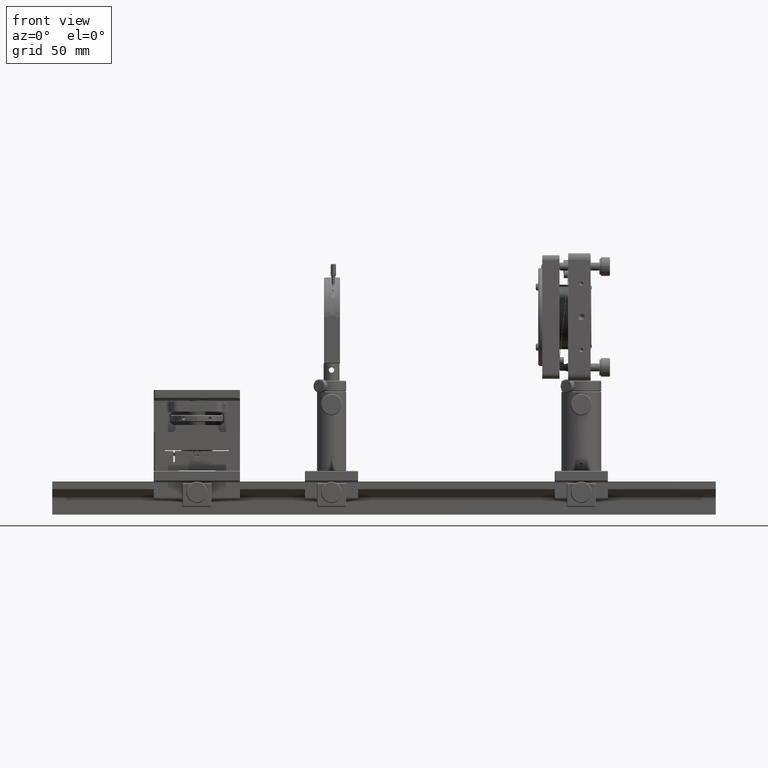
[diagram: clean part render]
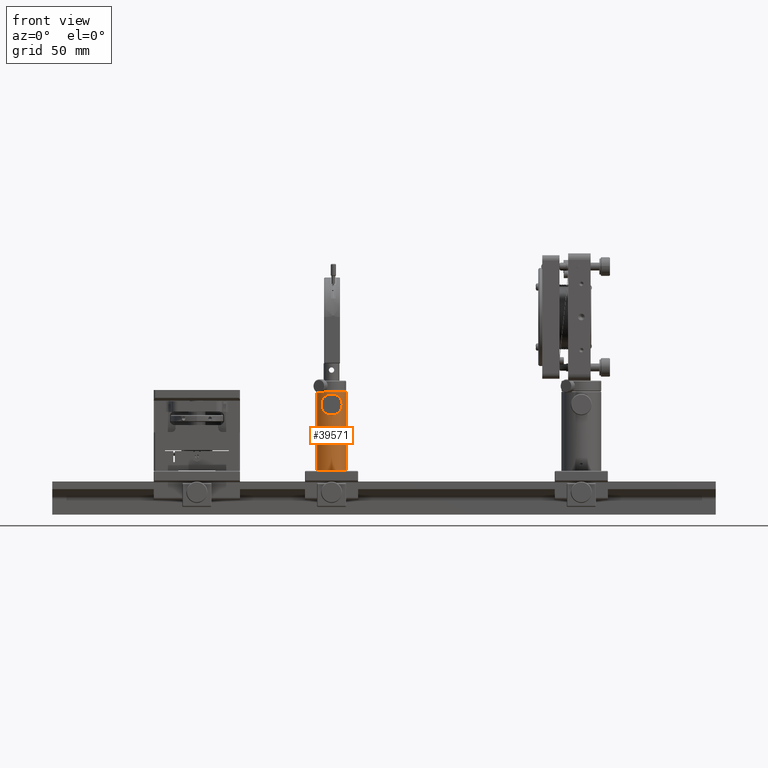
[diagram: same view with one face highlighted and labeled with its STEP entity id]
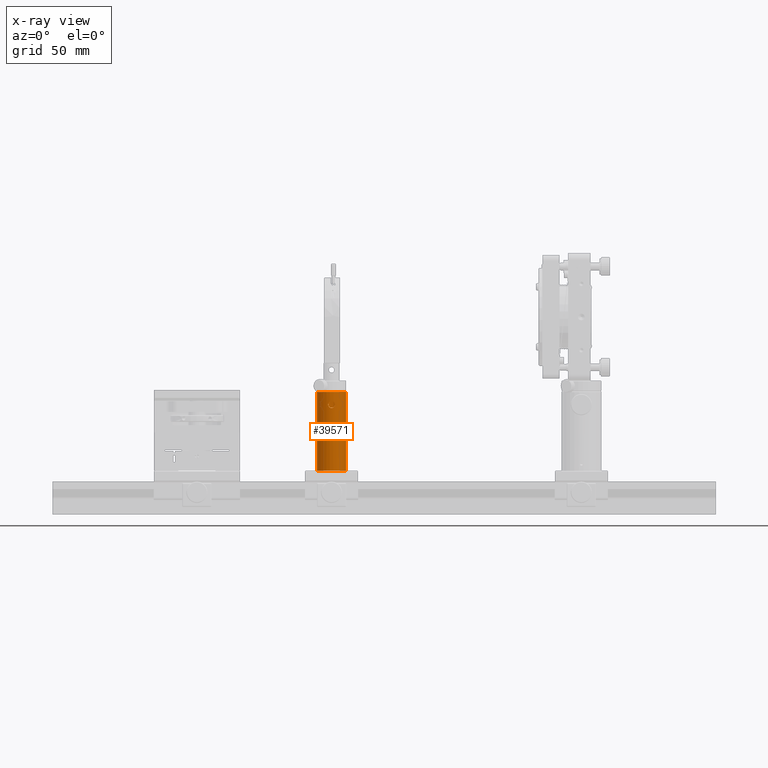
[diagram: x-ray of the same camera — body ghosted, the highlighted face saturated]
A machine part, front view. The second image highlights one B-rep face of the part: STEP entity #39571.
The next image is the same camera in x-ray: the body ghosted, the highlighted face saturated — about 0% of this face is hidden behind the body in this view.
In plain terms, the highlighted cylindrical surface (bore or boss wall) has radius 11 mm, axis along (0, 0, 1).
Its self-contained STEP definition (entity closure, byte-faithful):
#754=B_SPLINE_CURVE_WITH_KNOTS('',3,(#90207,#90208,#90209,#90210,#90211,
#90212,#90213,#90214,#90215,#90216,#90217,#90218,#90219,#90220,#90221,#90222,
#90223,#90224,#90225,#90226,#90227,#90228,#90229,#90230,#90231,#90232,#90233,
#90234,#90235,#90236,#90237,#90238,#90239,#90240),.UNSPECIFIED.,.T.,.F.,
(4,2,2,2,2,2,2,2,2,2,2,2,2,2,2,2,4),(0.,0.0945326703316579,0.189065340663316,
0.283589078138092,0.378112815612869,0.472636553087646,0.567160290562422,
0.66169296089408,0.756225631225739,0.850758301557397,0.945290971889055,
1.03981470936383,1.13433844683861,1.22886218431338,1.32338592178816,1.41791859211982,
1.51245126245148),.UNSPECIFIED.);
#757=B_SPLINE_CURVE_WITH_KNOTS('',3,(#90327,#90328,#90329,#90330,#90331,
#90332,#90333,#90334,#90335,#90336),.UNSPECIFIED.,.F.,.F.,(4,2,2,2,4),(-0.93673217896712,
-0.858672860687638,-0.780613542408156,-0.702550830859785,-0.624488119311413),
 .UNSPECIFIED.);
#758=B_SPLINE_CURVE_WITH_KNOTS('',3,(#90337,#90338,#90339,#90340,#90341,
#90342,#90343,#90344,#90345,#90346,#90347,#90348,#90349,#90350,#90351,#90352,
#90353,#90354,#90355,#90356,#90357,#90358,#90359,#90360,#90361,#90362,#90363),
 .UNSPECIFIED.,.F.,.F.,(4,2,2,2,2,2,2,2,3,2,2,2,4),(-0.624488119311413,
-0.546425407763042,-0.468362696214671,-0.390303377935189,-0.312244059655707,
-0.234184741376225,-0.156125423096742,-0.0780627115483712,0.,0.0780627115483712,
0.156125423096742,0.234184741376225,0.312244059655707),.UNSPECIFIED.);
#759=B_SPLINE_CURVE_WITH_KNOTS('',3,(#90366,#90367,#90368,#90369,#90370,
#90371,#90372,#90373,#90374,#90375),.UNSPECIFIED.,.F.,.F.,(4,2,2,2,4),(-0.936732178967118,
-0.858672860687635,-0.780613542408153,-0.702550830859782,-0.624488119311411),
 .UNSPECIFIED.);
#760=B_SPLINE_CURVE_WITH_KNOTS('',3,(#90376,#90377,#90378,#90379,#90380,
#90381,#90382,#90383,#90384,#90385,#90386,#90387,#90388,#90389,#90390,#90391,
#90392,#90393,#90394,#90395,#90396,#90397,#90398,#90399,#90400,#90401,#90402),
 .UNSPECIFIED.,.F.,.F.,(4,2,2,2,2,2,2,2,3,2,2,2,4),(-0.624488119311411,
-0.54642540776304,-0.468362696214669,-0.390303377935187,-0.312244059655705,
-0.234184741376223,-0.156125423096742,-0.0780627115483708,0.,0.078062711548371,
0.156125423096742,0.234184741376225,0.312244059655707),.UNSPECIFIED.);
#3830=LINE('',#90321,#7140);
#7140=VECTOR('',#53628,11.);
#8388=CYLINDRICAL_SURFACE('',#43703,11.);
#8894=FACE_BOUND('',#13417,.T.);
#8895=FACE_BOUND('',#13418,.T.);
#8896=FACE_BOUND('',#13419,.T.);
#10724=FACE_OUTER_BOUND('',#13416,.T.);
#13416=EDGE_LOOP('',(#33801,#33802,#33803,#33804,#33805));
#13417=EDGE_LOOP('',(#33806));
#13418=EDGE_LOOP('',(#33807,#33808));
#13419=EDGE_LOOP('',(#33809,#33810));
#15449=CIRCLE('',#43702,11.);
#15450=CIRCLE('',#43704,11.);
#15451=CIRCLE('',#43705,11.);
#18800=VERTEX_POINT('',#90206);
#18812=VERTEX_POINT('',#90316);
#18813=VERTEX_POINT('',#90320);
#18814=VERTEX_POINT('',#90322);
#18815=VERTEX_POINT('',#90325);
#18816=VERTEX_POINT('',#90326);
#18817=VERTEX_POINT('',#90364);
#18818=VERTEX_POINT('',#90365);
#23905=EDGE_CURVE('',#18800,#18800,#754,.T.);
#23924=EDGE_CURVE('',#18812,#18812,#15449,.T.);
#23926=EDGE_CURVE('',#18812,#18813,#3830,.T.);
#23927=EDGE_CURVE('',#18814,#18813,#15450,.T.);
#23928=EDGE_CURVE('',#18813,#18814,#15451,.T.);
#23929=EDGE_CURVE('',#18815,#18816,#757,.T.);
#23930=EDGE_CURVE('',#18816,#18815,#758,.T.);
#23931=EDGE_CURVE('',#18817,#18818,#759,.T.);
#23932=EDGE_CURVE('',#18818,#18817,#760,.T.);
#33801=ORIENTED_EDGE('',*,*,#23924,.F.);
#33802=ORIENTED_EDGE('',*,*,#23926,.T.);
#33803=ORIENTED_EDGE('',*,*,#23927,.F.);
#33804=ORIENTED_EDGE('',*,*,#23928,.F.);
#33805=ORIENTED_EDGE('',*,*,#23926,.F.);
#33806=ORIENTED_EDGE('',*,*,#23905,.T.);
#33807=ORIENTED_EDGE('',*,*,#23929,.T.);
#33808=ORIENTED_EDGE('',*,*,#23930,.T.);
#33809=ORIENTED_EDGE('',*,*,#23931,.T.);
#33810=ORIENTED_EDGE('',*,*,#23932,.T.);
#39571=ADVANCED_FACE('',(#10724,#8894,#8895,#8896),#8388,.T.);
#43702=AXIS2_PLACEMENT_3D('',#90317,#53623,#53624);
#43703=AXIS2_PLACEMENT_3D('',#90319,#53626,#53627);
#43704=AXIS2_PLACEMENT_3D('',#90323,#53629,#53630);
#43705=AXIS2_PLACEMENT_3D('',#90324,#53631,#53632);
#53623=DIRECTION('center_axis',(0.,0.,1.));
#53624=DIRECTION('ref_axis',(-1.,0.,0.));
#53626=DIRECTION('center_axis',(0.,0.,1.));
#53627=DIRECTION('ref_axis',(-1.,0.,0.));
#53628=DIRECTION('',(0.,0.,-1.));
#53629=DIRECTION('center_axis',(0.,0.,-1.));
#53630=DIRECTION('ref_axis',(1.,0.,0.));
#53631=DIRECTION('center_axis',(0.,0.,-1.));
#53632=DIRECTION('ref_axis',(1.,0.,0.));
#90206=CARTESIAN_POINT('',(-2.5,-10.7121426428143,55.));
#90207=CARTESIAN_POINT('Ctrl Pts',(-2.5,-10.7121426428143,55.));
#90208=CARTESIAN_POINT('Ctrl Pts',(-2.5,-10.7121426428143,55.3151089011055));
#90209=CARTESIAN_POINT('Ctrl Pts',(-2.43679925399006,-10.7274916778389,
55.6504358548924));
#90210=CARTESIAN_POINT('Ctrl Pts',(-2.18133093862547,-10.782340342055,56.2660383881));
#90211=CARTESIAN_POINT('Ctrl Pts',(-1.98912034117302,-10.8209840848888,
56.5464135647597));
#90212=CARTESIAN_POINT('Ctrl Pts',(-1.54643448152987,-10.8930632600009,
56.9890994244029));
#90213=CARTESIAN_POINT('Ctrl Pts',(-1.26605051099158,-10.9312667039225,
57.181326369136));
#90214=CARTESIAN_POINT('Ctrl Pts',(-0.650417094321274,-10.985100511421,
57.4368065780394));
#90215=CARTESIAN_POINT('Ctrl Pts',(-0.315079124915922,-11.,57.5));
#90216=CARTESIAN_POINT('Ctrl Pts',(0.315079124915922,-11.,57.5));
#90217=CARTESIAN_POINT('Ctrl Pts',(0.650417094321275,-10.985100511421,57.4368065780394));
#90218=CARTESIAN_POINT('Ctrl Pts',(1.26605051099158,-10.9312667039225,57.181326369136));
#90219=CARTESIAN_POINT('Ctrl Pts',(1.54643448152987,-10.8930632600009,56.9890994244029));
#90220=CARTESIAN_POINT('Ctrl Pts',(1.98912034117302,-10.8209840848888,56.5464135647597));
#90221=CARTESIAN_POINT('Ctrl Pts',(2.18133093862547,-10.782340342055,56.2660383881));
#90222=CARTESIAN_POINT('Ctrl Pts',(2.43679925399006,-10.7274916778389,55.6504358548924));
#90223=CARTESIAN_POINT('Ctrl Pts',(2.5,-10.7121426428143,55.3151089011055));
#90224=CARTESIAN_POINT('Ctrl Pts',(2.5,-10.7121426428143,54.6848910988945));
#90225=CARTESIAN_POINT('Ctrl Pts',(2.43679925399006,-10.7274916778389,54.3495641451076));
#90226=CARTESIAN_POINT('Ctrl Pts',(2.18133093862547,-10.782340342055,53.7339616119));
#90227=CARTESIAN_POINT('Ctrl Pts',(1.98912034117302,-10.8209840848888,53.4535864352403));
#90228=CARTESIAN_POINT('Ctrl Pts',(1.54643448152988,-10.8930632600009,53.0109005755971));
#90229=CARTESIAN_POINT('Ctrl Pts',(1.26605051099159,-10.9312667039225,52.818673630864));
#90230=CARTESIAN_POINT('Ctrl Pts',(0.650417094321286,-10.985100511421,52.5631934219606));
#90231=CARTESIAN_POINT('Ctrl Pts',(0.315079124915924,-11.,52.5));
#90232=CARTESIAN_POINT('Ctrl Pts',(-0.315079124915919,-11.,52.5));
#90233=CARTESIAN_POINT('Ctrl Pts',(-0.650417094321281,-10.985100511421,
52.5631934219606));
#90234=CARTESIAN_POINT('Ctrl Pts',(-1.26605051099158,-10.9312667039225,
52.818673630864));
#90235=CARTESIAN_POINT('Ctrl Pts',(-1.54643448152987,-10.8930632600009,
53.0109005755971));
#90236=CARTESIAN_POINT('Ctrl Pts',(-1.98912034117301,-10.8209840848888,
53.4535864352403));
#90237=CARTESIAN_POINT('Ctrl Pts',(-2.18133093862547,-10.782340342055,53.7339616119));
#90238=CARTESIAN_POINT('Ctrl Pts',(-2.43679925399006,-10.7274916778389,
54.3495641451076));
#90239=CARTESIAN_POINT('Ctrl Pts',(-2.5,-10.7121426428143,54.6848910988945));
#90240=CARTESIAN_POINT('Ctrl Pts',(-2.5,-10.7121426428143,55.));
#90316=CARTESIAN_POINT('',(11.,1.347067E-15,64.5));
#90317=CARTESIAN_POINT('Origin',(0.,0.,64.5));
#90319=CARTESIAN_POINT('Origin',(0.,0.,0.));
#90320=CARTESIAN_POINT('',(11.,1.34711147906209E-15,5.3));
#90321=CARTESIAN_POINT('',(11.,1.34711147906209E-15,0.));
#90322=CARTESIAN_POINT('',(-11.,1.347067E-15,5.3));
#90323=CARTESIAN_POINT('Origin',(0.,0.,5.3));
#90324=CARTESIAN_POINT('Origin',(0.,0.,5.3));
#90325=CARTESIAN_POINT('',(-9.52627944162882,5.50000000000001,57.067));
#90326=CARTESIAN_POINT('',(-10.3900823488066,3.61195082815603,55.));
#90327=CARTESIAN_POINT('Ctrl Pts',(-9.5262794416288,5.50000000000005,57.067));
#90328=CARTESIAN_POINT('Ctrl Pts',(-9.65637830542794,5.27466215789296,57.067));
#90329=CARTESIAN_POINT('Ctrl Pts',(-9.78613424621814,5.02958313910165,57.0148730176143));
#90330=CARTESIAN_POINT('Ctrl Pts',(-10.0088573317504,4.57032875779378,56.8037341826544));
#90331=CARTESIAN_POINT('Ctrl Pts',(-10.1022893678906,4.35636344207838,56.6447561584375));
#90332=CARTESIAN_POINT('Ctrl Pts',(-10.2429277001673,4.01454704924016,56.2784153126713));
#90333=CARTESIAN_POINT('Ctrl Pts',(-10.2996613356931,3.86373742501948,56.0464032909673));
#90334=CARTESIAN_POINT('Ctrl Pts',(-10.3730019089393,3.66228372656022,55.5373275364395));
#90335=CARTESIAN_POINT('Ctrl Pts',(-10.3900823488066,3.61195082815603,55.2602090384946));
#90336=CARTESIAN_POINT('Ctrl Pts',(-10.3900823488066,3.61195082815603,55.));
#90337=CARTESIAN_POINT('Ctrl Pts',(-10.3900823488066,3.61195082815603,55.));
#90338=CARTESIAN_POINT('Ctrl Pts',(-10.3900823488066,3.61195082815603,54.7397909615054));
#90339=CARTESIAN_POINT('Ctrl Pts',(-10.3730019089393,3.66228372656022,54.4626724635605));
#90340=CARTESIAN_POINT('Ctrl Pts',(-10.2996613356931,3.86373742501948,53.9535967090327));
#90341=CARTESIAN_POINT('Ctrl Pts',(-10.2429277001673,4.01454704924016,53.7215846873287));
#90342=CARTESIAN_POINT('Ctrl Pts',(-10.1022893678906,4.35636344207838,53.3552438415625));
#90343=CARTESIAN_POINT('Ctrl Pts',(-10.0088573317504,4.57032875779378,53.1962658173456));
#90344=CARTESIAN_POINT('Ctrl Pts',(-9.78613424621814,5.02958313910165,52.9851269823857));
#90345=CARTESIAN_POINT('Ctrl Pts',(-9.65637830542794,5.27466215789296,52.933));
#90346=CARTESIAN_POINT('Ctrl Pts',(-9.39618057782966,5.72533784210714,52.933));
#90347=CARTESIAN_POINT('Ctrl Pts',(-9.24881389201692,5.96024929251906,52.9851269823857));
#90348=CARTESIAN_POINT('Ctrl Pts',(-8.96244947377112,6.38276033325319,53.1962658173456));
#90349=CARTESIAN_POINT('Ctrl Pts',(-8.82386609290295,6.57065750793563,53.3552438415625));
#90350=CARTESIAN_POINT('Ctrl Pts',(-8.59816357941344,6.86336207285225,53.7215846873287));
#90351=CARTESIAN_POINT('Ctrl Pts',(-8.49592543146604,6.98789965457695,53.9535967090327));
#90352=CARTESIAN_POINT('Ctrl Pts',(-8.35813169753706,7.15214130336588,54.4626724635605));
#90353=CARTESIAN_POINT('Ctrl Pts',(-8.3230823488066,7.1920998474009,54.7397909615054));
#90354=CARTESIAN_POINT('Ctrl Pts',(-8.3230823488066,7.1920998474009,55.));
#90355=CARTESIAN_POINT('Ctrl Pts',(-8.3230823488066,7.1920998474009,55.2602090384946));
#90356=CARTESIAN_POINT('Ctrl Pts',(-8.35813169753706,7.15214130336588,55.5373275364395));
#90357=CARTESIAN_POINT('Ctrl Pts',(-8.49592543146604,6.98789965457695,56.0464032909673));
#90358=CARTESIAN_POINT('Ctrl Pts',(-8.59816357941344,6.86336207285225,56.2784153126713));
#90359=CARTESIAN_POINT('Ctrl Pts',(-8.82386609290295,6.57065750793563,56.6447561584375));
#90360=CARTESIAN_POINT('Ctrl Pts',(-8.96244947377112,6.38276033325319,56.8037341826544));
#90361=CARTESIAN_POINT('Ctrl Pts',(-9.24881389201692,5.96024929251906,57.0148730176143));
#90362=CARTESIAN_POINT('Ctrl Pts',(-9.39618057782966,5.72533784210714,57.067));
#90363=CARTESIAN_POINT('Ctrl Pts',(-9.52627944162879,5.50000000000005,57.067));
#90364=CARTESIAN_POINT('',(9.52627944162883,5.5,57.067));
#90365=CARTESIAN_POINT('',(8.32308234880664,7.19209984740085,55.));
#90366=CARTESIAN_POINT('Ctrl Pts',(9.52627944162882,5.5,57.067));
#90367=CARTESIAN_POINT('Ctrl Pts',(9.39618057782969,5.72533784210709,57.067));
#90368=CARTESIAN_POINT('Ctrl Pts',(9.24881389201695,5.96024929251901,57.0148730176143));
#90369=CARTESIAN_POINT('Ctrl Pts',(8.96244947377116,6.38276033325314,56.8037341826544));
#90370=CARTESIAN_POINT('Ctrl Pts',(8.82386609290299,6.57065750793559,56.6447561584375));
#90371=CARTESIAN_POINT('Ctrl Pts',(8.59816357941348,6.8633620728522,56.2784153126713));
#90372=CARTESIAN_POINT('Ctrl Pts',(8.49592543146607,6.98789965457691,56.0464032909673));
#90373=CARTESIAN_POINT('Ctrl Pts',(8.3581316975371,7.15214130336583,55.5373275364395));
#90374=CARTESIAN_POINT('Ctrl Pts',(8.32308234880664,7.19209984740085,55.2602090384946));
#90375=CARTESIAN_POINT('Ctrl Pts',(8.32308234880664,7.19209984740085,55.));
#90376=CARTESIAN_POINT('Ctrl Pts',(8.32308234880664,7.19209984740085,55.));
#90377=CARTESIAN_POINT('Ctrl Pts',(8.32308234880664,7.19209984740085,54.7397909615054));
#90378=CARTESIAN_POINT('Ctrl Pts',(8.3581316975371,7.15214130336583,54.4626724635605));
#90379=CARTESIAN_POINT('Ctrl Pts',(8.49592543146608,6.9878996545769,53.9535967090326));
#90380=CARTESIAN_POINT('Ctrl Pts',(8.59816357941348,6.8633620728522,53.7215846873287));
#90381=CARTESIAN_POINT('Ctrl Pts',(8.82386609290299,6.57065750793558,53.3552438415625));
#90382=CARTESIAN_POINT('Ctrl Pts',(8.96244947377116,6.38276033325314,53.1962658173456));
#90383=CARTESIAN_POINT('Ctrl Pts',(9.24881389201695,5.96024929251901,52.9851269823857));
#90384=CARTESIAN_POINT('Ctrl Pts',(9.3961805778297,5.72533784210709,52.933));
#90385=CARTESIAN_POINT('Ctrl Pts',(9.65637830542797,5.27466215789292,52.933));
#90386=CARTESIAN_POINT('Ctrl Pts',(9.78613424621817,5.0295831391016,52.9851269823857));
#90387=CARTESIAN_POINT('Ctrl Pts',(10.0088573317504,4.57032875779373,53.1962658173456));
#90388=CARTESIAN_POINT('Ctrl Pts',(10.1022893678907,4.35636344207834,53.3552438415625));
#90389=CARTESIAN_POINT('Ctrl Pts',(10.2429277001674,4.01454704924012,53.7215846873287));
#90390=CARTESIAN_POINT('Ctrl Pts',(10.2996613356931,3.86373742501944,53.9535967090326));
#90391=CARTESIAN_POINT('Ctrl Pts',(10.3730019089393,3.66228372656016,54.4626724635605));
#90392=CARTESIAN_POINT('Ctrl Pts',(10.3900823488066,3.61195082815599,54.7397909615054));
#90393=CARTESIAN_POINT('Ctrl Pts',(10.3900823488066,3.61195082815598,55.));
#90394=CARTESIAN_POINT('Ctrl Pts',(10.3900823488066,3.61195082815598,55.2602090384946));
#90395=CARTESIAN_POINT('Ctrl Pts',(10.3730019089393,3.66228372656015,55.5373275364395));
#90396=CARTESIAN_POINT('Ctrl Pts',(10.2996613356931,3.86373742501942,56.0464032909673));
#90397=CARTESIAN_POINT('Ctrl Pts',(10.2429277001674,4.01454704924011,56.2784153126713));
#90398=CARTESIAN_POINT('Ctrl Pts',(10.1022893678907,4.35636344207833,56.6447561584375));
#90399=CARTESIAN_POINT('Ctrl Pts',(10.0088573317504,4.57032875779372,56.8037341826544));
#90400=CARTESIAN_POINT('Ctrl Pts',(9.78613424621817,5.0295831391016,57.0148730176143));
#90401=CARTESIAN_POINT('Ctrl Pts',(9.65637830542796,5.27466215789291,57.067));
#90402=CARTESIAN_POINT('Ctrl Pts',(9.52627944162882,5.5,57.067));